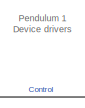
[diagram: root canvas - part 1/3, top center region]
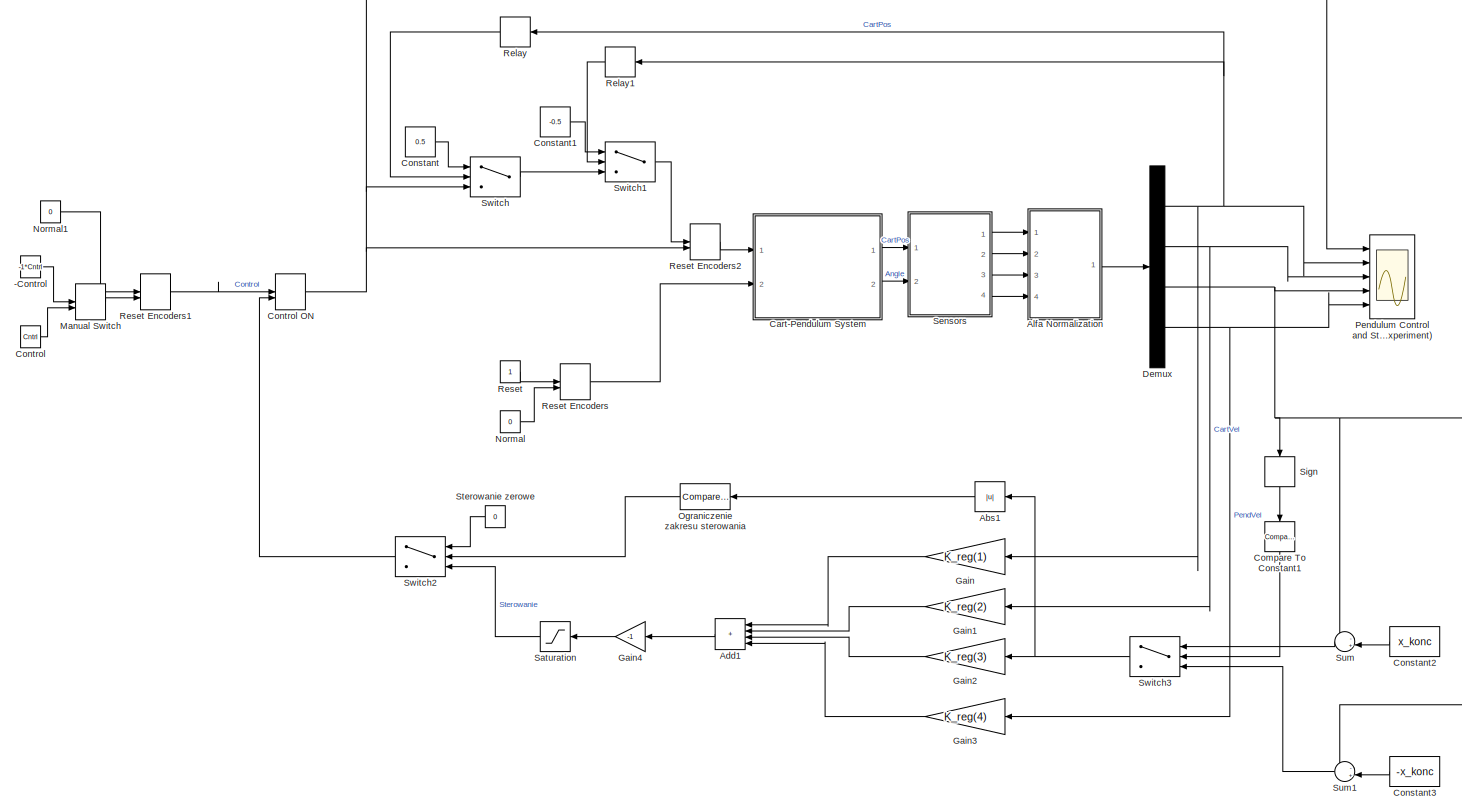
[diagram: root canvas - part 2/3, most of the canvas]
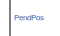
[diagram: root canvas - part 3/3, bottom right region]
MODEL slx_bb6b50c6ecb5
KIND model
CONFIG AbsTol = 1e-6
CONFIG EnableMultiTasking = off
CONFIG FixedStep = 0.01
CONFIG MaxStep = auto
CONFIG MinStep = auto
CONFIG RelTol = 1e-3
CONFIG SampleTimeConstraint = Unconstrained
CONFIG SolverName = ode5
CONFIG StartTime = 0.0
CONFIG StopTime = 999
BLOCK [Constant] -Control
  NameLocation = top
  Value = -1*Cntrl
BLOCK [Abs] Abs1
  NameLocation = top
  SaturateOnIntegerOverflow = off
BLOCK [Sum] Add1
  IconShape = rectangular
  Inputs = ++++
  NameLocation = top
  Ports = [4, 1]
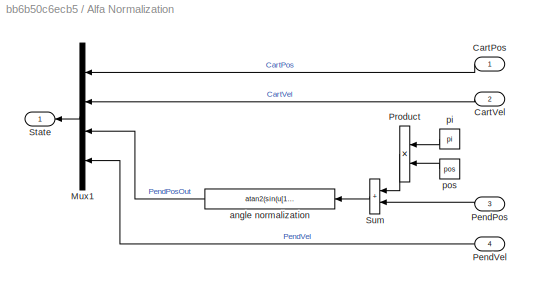
BLOCK [SubSystem] Alfa Normalization
  Ports = [4, 1]
  RequestExecContextInheritance = off
BLOCK [Inport] Alfa Normalization/CartPos
BLOCK [Inport] Alfa Normalization/CartVel
  Port = 2
BLOCK [Mux] Alfa Normalization/Mux1
  NameLocation = top
  Ports = [4, 1]
BLOCK [Inport] Alfa Normalization/PendPos
  Port = 3
BLOCK [Inport] Alfa Normalization/PendVel
  Port = 4
BLOCK [Product] Alfa Normalization/Product
  InputSameDT = on
  NameLocation = top
  OutDataTypeStr = Inherit: Same as first input
  Ports = [2, 1]
  SaturateOnIntegerOverflow = on
BLOCK [Outport] Alfa Normalization/State
  InitialOutput = 0
BLOCK [Sum] Alfa Normalization/Sum
  IconShape = rectangular
  InputSameDT = on
  NameLocation = top
  OutDataTypeStr = Inherit: Same as first input
  Ports = [2, 1]
  SaturateOnIntegerOverflow = on
BLOCK [Fcn] Alfa Normalization/angle normalization
  Expr = atan2(sin(u[1]),cos(u[1]))
  NameLocation = top
BLOCK [Constant] Alfa Normalization/pi
  NameLocation = top
  Value = pi
BLOCK [Constant] Alfa Normalization/pos
  Value = pos
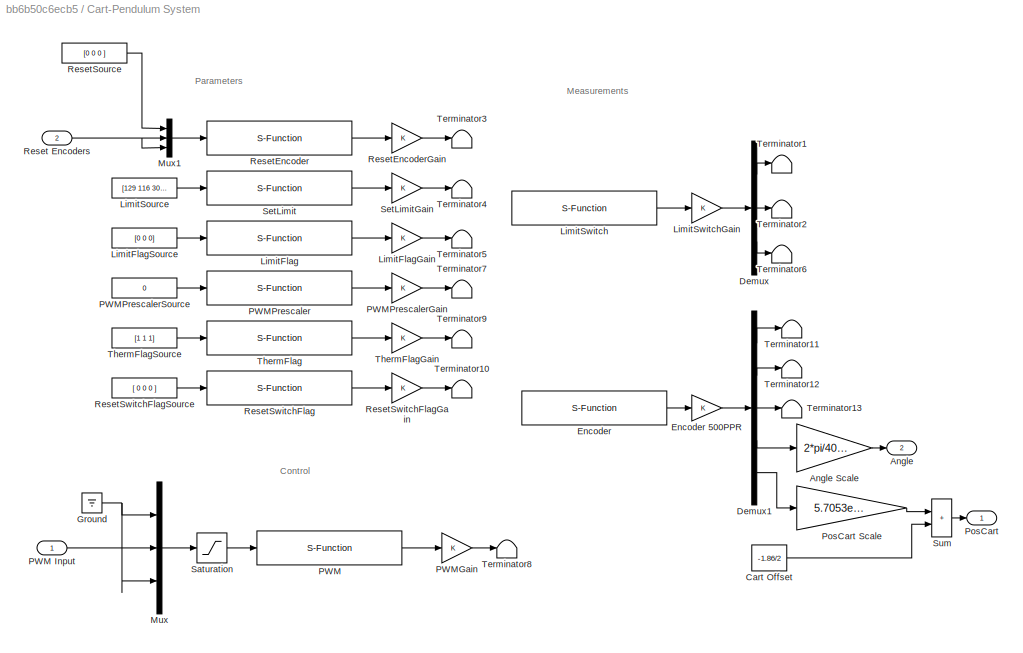
BLOCK [SubSystem] Cart-Pendulum System
  Ports = [2, 2]
  RequestExecContextInheritance = off
BLOCK [Outport] Cart-Pendulum System/Angle
  InitialOutput = 0
  Port = 2
BLOCK [Gain] Cart-Pendulum System/Angle Scale
  Gain = 2*pi/4096
  OutDataTypeStr = Inherit: Same as input
  ParamDataTypeStr = Inherit: Same as input
BLOCK [Constant] Cart-Pendulum System/Cart Offset
  Value = -1.86/2
BLOCK [Demux] Cart-Pendulum System/Demux
  DisplayOption = none
  Outputs = 3
  Ports = [1, 3]
BLOCK [Demux] Cart-Pendulum System/Demux1
  DisplayOption = none
  Outputs = 5
  Ports = [1, 5]
BLOCK [S-Function] Cart-Pendulum System/Encoder
  EnableBusSupport = off
  FunctionName = P1_Encoder
  Parameters = BaseAddress, T0
  Ports = [0, 1]
  SFcnIsStateOwnerBlock = off
  SFunctionDeploymentMode = off
BLOCK [Gain] Cart-Pendulum System/Encoder 500PPR
  OutDataTypeStr = Inherit: Same as input
  ParamDataTypeStr = Inherit: Same as input
  SaturateOnIntegerOverflow = on
BLOCK [Ground] Cart-Pendulum System/Ground
BLOCK [S-Function] Cart-Pendulum System/LimitFlag
  EnableBusSupport = off
  FunctionName = P1_LimitFlag
  Parameters = BaseAddress, T0
  Ports = [1, 1]
  SFcnIsStateOwnerBlock = off
  SFunctionDeploymentMode = off
BLOCK [Gain] Cart-Pendulum System/LimitFlagGain
  OutDataTypeStr = Inherit: Same as input
  ParamDataTypeStr = Inherit: Same as input
  SaturateOnIntegerOverflow = on
BLOCK [Constant] Cart-Pendulum System/LimitFlagSource
  Value = [0 0 0]
BLOCK [Constant] Cart-Pendulum System/LimitSource
  Value = [129 116 300]
BLOCK [S-Function] Cart-Pendulum System/LimitSwitch
  EnableBusSupport = off
  FunctionName = P1_Switch
  Parameters = BaseAddress, T0
  Ports = [0, 1]
  SFcnIsStateOwnerBlock = off
  SFunctionDeploymentMode = off
BLOCK [Gain] Cart-Pendulum System/LimitSwitchGain
  OutDataTypeStr = Inherit: Same as input
  ParamDataTypeStr = Inherit: Same as input
  SaturateOnIntegerOverflow = on
BLOCK [Mux] Cart-Pendulum System/Mux
  Inputs = 3
  Ports = [3, 1]
BLOCK [Mux] Cart-Pendulum System/Mux1
  DisplayOption = bar
  Inputs = [3 1 1]
  Ports = [3, 1]
BLOCK [S-Function] Cart-Pendulum System/PWM
  EnableBusSupport = off
  FunctionName = P1_PWM
  Parameters = BaseAddress, T0
  Ports = [1, 1]
  SFcnIsStateOwnerBlock = off
  SFunctionDeploymentMode = off
BLOCK [Inport] Cart-Pendulum System/PWM Input
BLOCK [Gain] Cart-Pendulum System/PWMGain
  OutDataTypeStr = Inherit: Same as input
  ParamDataTypeStr = Inherit: Same as input
  SaturateOnIntegerOverflow = on
BLOCK [S-Function] Cart-Pendulum System/PWMPrescaler
  EnableBusSupport = off
  FunctionName = P1_PWMPrescaler
  Parameters = BaseAddress, T0
  Ports = [1, 1]
  SFcnIsStateOwnerBlock = off
  SFunctionDeploymentMode = off
BLOCK [Gain] Cart-Pendulum System/PWMPrescalerGain
  OutDataTypeStr = Inherit: Same as input
  ParamDataTypeStr = Inherit: Same as input
  SaturateOnIntegerOverflow = on
BLOCK [Constant] Cart-Pendulum System/PWMPrescalerSource
  Value = 0
BLOCK [Outport] Cart-Pendulum System/PosCart
  InitialOutput = 0
BLOCK [Gain] Cart-Pendulum System/PosCart Scale
  Gain = 5.7053e-005
  OutDataTypeStr = Inherit: Same as input
  ParamDataTypeStr = Inherit: Same as input
BLOCK [Inport] Cart-Pendulum System/Reset Encoders
  Port = 2
BLOCK [S-Function] Cart-Pendulum System/ResetEncoder
  EnableBusSupport = off
  FunctionName = P1_ResetEncoder
  Parameters = BaseAddress, T0
  Ports = [1, 1]
  SFcnIsStateOwnerBlock = off
  SFunctionDeploymentMode = off
BLOCK [Gain] Cart-Pendulum System/ResetEncoderGain
  OutDataTypeStr = Inherit: Same as input
  ParamDataTypeStr = Inherit: Same as input
  SaturateOnIntegerOverflow = on
BLOCK [Constant] Cart-Pendulum System/ResetSource
  Value = [0 0 0 ]
BLOCK [S-Function] Cart-Pendulum System/ResetSwitchFlag 
  EnableBusSupport = off
  FunctionName = P1_ResetSwitchFlag
  Parameters = BaseAddress, T0
  Ports = [1, 1]
  SFcnIsStateOwnerBlock = off
  SFunctionDeploymentMode = off
BLOCK [Gain] Cart-Pendulum System/ResetSwitchFlagGain
  OutDataTypeStr = Inherit: Same as input
  ParamDataTypeStr = Inherit: Same as input
  SaturateOnIntegerOverflow = on
BLOCK [Constant] Cart-Pendulum System/ResetSwitchFlagSource
  Value = [ 0 0 0 ]
BLOCK [Saturate] Cart-Pendulum System/Saturation
BLOCK [S-Function] Cart-Pendulum System/SetLimit
  EnableBusSupport = off
  FunctionName = P1_SetLimit
  Parameters = BaseAddress, T0
  Ports = [1, 1]
  SFcnIsStateOwnerBlock = off
  SFunctionDeploymentMode = off
BLOCK [Gain] Cart-Pendulum System/SetLimitGain
  OutDataTypeStr = Inherit: Same as input
  ParamDataTypeStr = Inherit: Same as input
  SaturateOnIntegerOverflow = on
BLOCK [Sum] Cart-Pendulum System/Sum
  IconShape = rectangular
  InputSameDT = on
  OutDataTypeStr = Inherit: Same as first input
  Ports = [2, 1]
  SaturateOnIntegerOverflow = on
BLOCK [Terminator] Cart-Pendulum System/Terminator1
BLOCK [Terminator] Cart-Pendulum System/Terminator10
BLOCK [Terminator] Cart-Pendulum System/Terminator11
BLOCK [Terminator] Cart-Pendulum System/Terminator12
BLOCK [Terminator] Cart-Pendulum System/Terminator13
BLOCK [Terminator] Cart-Pendulum System/Terminator2
BLOCK [Terminator] Cart-Pendulum System/Terminator3
BLOCK [Terminator] Cart-Pendulum System/Terminator4
BLOCK [Terminator] Cart-Pendulum System/Terminator5
BLOCK [Terminator] Cart-Pendulum System/Terminator6
BLOCK [Terminator] Cart-Pendulum System/Terminator7
BLOCK [Terminator] Cart-Pendulum System/Terminator8
BLOCK [Terminator] Cart-Pendulum System/Terminator9
BLOCK [S-Function] Cart-Pendulum System/ThermFlag 
  EnableBusSupport = off
  FunctionName = P1_ThermFlag
  Parameters = BaseAddress, T0
  Ports = [1, 1]
  SFcnIsStateOwnerBlock = off
  SFunctionDeploymentMode = off
BLOCK [Gain] Cart-Pendulum System/ThermFlagGain
  OutDataTypeStr = Inherit: Same as input
  ParamDataTypeStr = Inherit: Same as input
  SaturateOnIntegerOverflow = on
BLOCK [Constant] Cart-Pendulum System/ThermFlagSource
  Value = [1 1 1]
BLOCK [Reference] Compare To Constant1  REF=simulink/Logic and Bit
Operations/Compare
To Constant
  NameLocation = left
  Ports = [1, 1]
  SourceBlock = simulink/Logic and Bit\nOperations/Compare\nTo Constant
  SourceProductBaseCode = SL
  SourceType = Compare To Constant
BLOCK [Constant] Constant
  Value = 0.5
BLOCK [Constant] Constant1
  Value = -0.5
BLOCK [Constant] Constant2
  NameLocation = top
  Value = x_konc
BLOCK [Constant] Constant3
  NameLocation = top
  Value = -x_konc
BLOCK [Constant] Control
  NameLocation = top
  Value = Cntrl
BLOCK [ManualSwitch] Control ON
BLOCK [Demux] Demux
  DisplayOption = none
  Ports = [1, 4]
BLOCK [Gain] Gain
  Gain = K_reg(1)
  NameLocation = top
BLOCK [Gain] Gain1
  Gain = K_reg(2)
  NameLocation = top
BLOCK [Gain] Gain2
  Gain = K_reg(3)
  NameLocation = top
BLOCK [Gain] Gain3
  Gain = K_reg(4)
  NameLocation = top
BLOCK [Gain] Gain4
  Gain = -1
BLOCK [ManualSwitch] Manual Switch
BLOCK [Constant] Normal
  Value = 0
BLOCK [Constant] Normal1
  Value = 0
BLOCK [Reference] Ograniczenie zakresu sterowania  REF=simulink/Logic and Bit
Operations/Compare
To Constant
  NameLocation = top
  Ports = [1, 1]
  SourceBlock = simulink/Logic and Bit\nOperations/Compare\nTo Constant
  SourceProductBaseCode = SL
  SourceType = Compare To Constant
BLOCK [Scope] Pendulum Control and States (Experiment)
  ExtModeLoggingTrig = on
  ExtModeUploadOption = log
  Floating = off
  NumInputPorts = 5
  Ports = [5]
  ScopeSpecificationString = Simulink.scopes.TimeScopeBlockCfg('CurrentConfiguration', extmgr.ConfigurationSet(extmgr.Configuration('Core','General UI',true),extmgr.Configuration('Core','Source UI',true),extmgr.Configuration('Sources','WiredSimulink',true,'DataLogging',true,'DataLoggingVariableName','P1_ExpData','DataLoggingSaveFormat','StructureWithTime','DataLoggingMaxPoints','50000','DataLoggingDecimation','1','DataLogging...<+4473ch>
BLOCK [Relay] Relay
  NameLocation = top
  OffSwitchValue = 0.6
  OnSwitchValue = 0.7
BLOCK [Relay] Relay1
  NameLocation = top
  OffOutputValue = 1
  OffSwitchValue = -0.7
  OnOutputValue = 0
  OnSwitchValue = -0.6
BLOCK [Constant] Reset
  NameLocation = top
BLOCK [ManualSwitch] Reset Encoders
  CurrentSetting = 0
BLOCK [ManualSwitch] Reset Encoders1
BLOCK [ManualSwitch] Reset Encoders2
  CurrentSetting = 0
BLOCK [Saturate] Saturation
  LowerLimit = -1
  NameLocation = top
  UpperLimit = 1
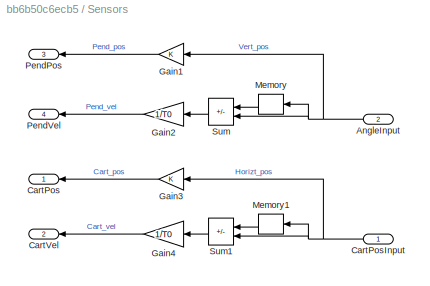
BLOCK [SubSystem] Sensors
  Ports = [2, 4]
  RequestExecContextInheritance = off
BLOCK [Inport] Sensors/AngleInput
  NameLocation = top
  Port = 2
BLOCK [Outport] Sensors/CartPos
  InitialOutput = 0
BLOCK [Inport] Sensors/CartPosInput
  NameLocation = top
BLOCK [Outport] Sensors/CartVel
  InitialOutput = 0
  Port = 2
BLOCK [Gain] Sensors/Gain1
  OutDataTypeStr = Inherit: Same as input
  ParamDataTypeStr = Inherit: Same as input
  SaturateOnIntegerOverflow = on
BLOCK [Gain] Sensors/Gain2
  Gain = 1/T0
  OutDataTypeStr = Inherit: Same as input
  ParamDataTypeStr = Inherit: Same as input
  SaturateOnIntegerOverflow = on
BLOCK [Gain] Sensors/Gain3
  OutDataTypeStr = Inherit: Same as input
  ParamDataTypeStr = Inherit: Same as input
  SaturateOnIntegerOverflow = on
BLOCK [Gain] Sensors/Gain4
  Gain = 1/T0
  OutDataTypeStr = Inherit: Same as input
  ParamDataTypeStr = Inherit: Same as input
  SaturateOnIntegerOverflow = on
BLOCK [Memory] Sensors/Memory
  NameLocation = top
BLOCK [Memory] Sensors/Memory1
  NameLocation = top
BLOCK [Outport] Sensors/PendPos
  InitialOutput = 0
  Port = 3
BLOCK [Outport] Sensors/PendVel
  InitialOutput = 0
  Port = 4
BLOCK [Sum] Sensors/Sum
  IconShape = rectangular
  InputSameDT = on
  Inputs = -+
  NameLocation = top
  OutDataTypeStr = Inherit: Same as first input
  Ports = [2, 1]
  SaturateOnIntegerOverflow = on
BLOCK [Sum] Sensors/Sum1
  IconShape = rectangular
  InputSameDT = on
  Inputs = -+
  NameLocation = top
  OutDataTypeStr = Inherit: Same as first input
  Ports = [2, 1]
  SaturateOnIntegerOverflow = on
BLOCK [Signum] Sign
  NameLocation = left
BLOCK [Constant] Sterowanie zerowe
  NameLocation = top
  Value = 0
BLOCK [Sum] Sum
  Inputs = -+|
  Ports = [2, 1]
BLOCK [Sum] Sum1
  Inputs = -+|
  Ports = [2, 1]
BLOCK [Switch] Switch
  InputSameDT = off
  SaturateOnIntegerOverflow = off
  Threshold = 1
BLOCK [Switch] Switch1
  InputSameDT = off
  SaturateOnIntegerOverflow = off
  Threshold = 1
BLOCK [Switch] Switch2
  InputSameDT = off
  NameLocation = top
  SaturateOnIntegerOverflow = off
  Threshold = 1
BLOCK [Switch] Switch3
  InputSameDT = off
  NameLocation = top
  SaturateOnIntegerOverflow = off
  Threshold = 1
ANNOTATION (root): Pendulum 1 Device drivers
ANNOTATION Cart-Pendulum System: Control
ANNOTATION Cart-Pendulum System: Measurements
ANNOTATION Cart-Pendulum System: Parameters
LINE -Control:1 -> Manual Switch:1
LINE Abs1:1 -> Ograniczenie zakresu sterowania:1
LINE Add1:1 -> Gain4:1
LINE Alfa Normalization/CartPos:1 -> Alfa Normalization/Mux1:1
LINE Alfa Normalization/CartVel:1 -> Alfa Normalization/Mux1:2
LINE Alfa Normalization/Mux1:1 -> Alfa Normalization/State:1
LINE Alfa Normalization/PendPos:1 -> Alfa Normalization/Sum:2
LINE Alfa Normalization/PendVel:1 -> Alfa Normalization/Mux1:4
LINE Alfa Normalization/Product:1 -> Alfa Normalization/Sum:1
LINE Alfa Normalization/Sum:1 -> Alfa Normalization/angle normalization:1
LINE Alfa Normalization/angle normalization:1 -> Alfa Normalization/Mux1:3
LINE Alfa Normalization/pi:1 -> Alfa Normalization/Product:1
LINE Alfa Normalization/pos:1 -> Alfa Normalization/Product:2
LINE Alfa Normalization:1 -> Demux:1
LINE Cart-Pendulum System/Angle Scale:1 -> Cart-Pendulum System/Angle:1
LINE Cart-Pendulum System/Cart Offset:1 -> Cart-Pendulum System/Sum:2
LINE Cart-Pendulum System/Demux1:1 -> Cart-Pendulum System/Terminator11:1
LINE Cart-Pendulum System/Demux1:2 -> Cart-Pendulum System/Terminator12:1
LINE Cart-Pendulum System/Demux1:3 -> Cart-Pendulum System/Terminator13:1
LINE Cart-Pendulum System/Demux1:4 -> Cart-Pendulum System/Angle Scale:1
LINE Cart-Pendulum System/Demux1:5 -> Cart-Pendulum System/PosCart Scale:1
LINE Cart-Pendulum System/Demux:1 -> Cart-Pendulum System/Terminator1:1
LINE Cart-Pendulum System/Demux:2 -> Cart-Pendulum System/Terminator2:1
LINE Cart-Pendulum System/Demux:3 -> Cart-Pendulum System/Terminator6:1
LINE Cart-Pendulum System/Encoder 500PPR:1 -> Cart-Pendulum System/Demux1:1
LINE Cart-Pendulum System/Encoder:1 -> Cart-Pendulum System/Encoder 500PPR:1
NET Cart-Pendulum System/Ground:1 -> Cart-Pendulum System/Mux:1, Cart-Pendulum System/Mux:3
LINE Cart-Pendulum System/LimitFlag:1 -> Cart-Pendulum System/LimitFlagGain:1
LINE Cart-Pendulum System/LimitFlagGain:1 -> Cart-Pendulum System/Terminator5:1
LINE Cart-Pendulum System/LimitFlagSource:1 -> Cart-Pendulum System/LimitFlag:1
LINE Cart-Pendulum System/LimitSource:1 -> Cart-Pendulum System/SetLimit:1
LINE Cart-Pendulum System/LimitSwitch:1 -> Cart-Pendulum System/LimitSwitchGain:1
LINE Cart-Pendulum System/LimitSwitchGain:1 -> Cart-Pendulum System/Demux:1
LINE Cart-Pendulum System/Mux1:1 -> Cart-Pendulum System/ResetEncoder:1
LINE Cart-Pendulum System/Mux:1 -> Cart-Pendulum System/Saturation:1
LINE Cart-Pendulum System/PWM Input:1 -> Cart-Pendulum System/Mux:2
LINE Cart-Pendulum System/PWM:1 -> Cart-Pendulum System/PWMGain:1
LINE Cart-Pendulum System/PWMGain:1 -> Cart-Pendulum System/Terminator8:1
LINE Cart-Pendulum System/PWMPrescaler:1 -> Cart-Pendulum System/PWMPrescalerGain:1
LINE Cart-Pendulum System/PWMPrescalerGain:1 -> Cart-Pendulum System/Terminator7:1
LINE Cart-Pendulum System/PWMPrescalerSource:1 -> Cart-Pendulum System/PWMPrescaler:1
LINE Cart-Pendulum System/PosCart Scale:1 -> Cart-Pendulum System/Sum:1
NET Cart-Pendulum System/Reset Encoders:1 -> Cart-Pendulum System/Mux1:2, Cart-Pendulum System/Mux1:3
LINE Cart-Pendulum System/ResetEncoder:1 -> Cart-Pendulum System/ResetEncoderGain:1
LINE Cart-Pendulum System/ResetEncoderGain:1 -> Cart-Pendulum System/Terminator3:1
LINE Cart-Pendulum System/ResetSource:1 -> Cart-Pendulum System/Mux1:1
LINE Cart-Pendulum System/ResetSwitchFlag :1 -> Cart-Pendulum System/ResetSwitchFlagGain:1
LINE Cart-Pendulum System/ResetSwitchFlagGain:1 -> Cart-Pendulum System/Terminator10:1
LINE Cart-Pendulum System/ResetSwitchFlagSource:1 -> Cart-Pendulum System/ResetSwitchFlag :1
LINE Cart-Pendulum System/Saturation:1 -> Cart-Pendulum System/PWM:1
LINE Cart-Pendulum System/SetLimit:1 -> Cart-Pendulum System/SetLimitGain:1
LINE Cart-Pendulum System/SetLimitGain:1 -> Cart-Pendulum System/Terminator4:1
LINE Cart-Pendulum System/Sum:1 -> Cart-Pendulum System/PosCart:1
LINE Cart-Pendulum System/ThermFlag :1 -> Cart-Pendulum System/ThermFlagGain:1
LINE Cart-Pendulum System/ThermFlagGain:1 -> Cart-Pendulum System/Terminator9:1
LINE Cart-Pendulum System/ThermFlagSource:1 -> Cart-Pendulum System/ThermFlag :1
LINE Cart-Pendulum System:1 -> Sensors:1
LINE Cart-Pendulum System:2 -> Sensors:2
LINE Compare To Constant1:1 -> Switch3:2
LINE Constant1:1 -> Switch1:1
LINE Constant2:1 -> Sum:2
LINE Constant3:1 -> Sum1:2
LINE Constant:1 -> Switch:1
NET Control ON:1 -> Pendulum Control and States (Experiment):1, Reset Encoders2:2, Switch:3
LINE Control:1 -> Manual Switch:2
NET Demux:1 -> Gain:1, Pendulum Control and States (Experiment):2, Relay1:1, Relay:1
NET Demux:2 -> Gain1:1, Pendulum Control and States (Experiment):3
NET Demux:3 -> Pendulum Control and States (Experiment):4, Sign:1, Sum1:1, Sum:1
NET Demux:4 -> Gain3:1, Pendulum Control and States (Experiment):5
LINE Gain1:1 -> Add1:2
LINE Gain2:1 -> Add1:3
LINE Gain3:1 -> Add1:4
LINE Gain4:1 -> Saturation:1
LINE Gain:1 -> Add1:1
LINE Manual Switch:1 -> Reset Encoders1:2
LINE Normal1:1 -> Reset Encoders1:1
LINE Normal:1 -> Reset Encoders:2
LINE Ograniczenie zakresu sterowania:1 -> Switch2:2
LINE Relay1:1 -> Switch1:2
LINE Relay:1 -> Switch:2
LINE Reset Encoders1:1 -> Control ON:1
LINE Reset Encoders2:1 -> Cart-Pendulum System:1
LINE Reset Encoders:1 -> Cart-Pendulum System:2
LINE Reset:1 -> Reset Encoders:1
LINE Saturation:1 -> Switch2:3
NET Sensors/AngleInput:1 -> Sensors/Gain1:1, Sensors/Memory:1, Sensors/Sum:2
NET Sensors/CartPosInput:1 -> Sensors/Gain3:1, Sensors/Memory1:1, Sensors/Sum1:2
LINE Sensors/Gain1:1 -> Sensors/PendPos:1
LINE Sensors/Gain2:1 -> Sensors/PendVel:1
LINE Sensors/Gain3:1 -> Sensors/CartPos:1
LINE Sensors/Gain4:1 -> Sensors/CartVel:1
LINE Sensors/Memory1:1 -> Sensors/Sum1:1
LINE Sensors/Memory:1 -> Sensors/Sum:1
LINE Sensors/Sum1:1 -> Sensors/Gain4:1
LINE Sensors/Sum:1 -> Sensors/Gain2:1
LINE Sensors:1 -> Alfa Normalization:1
LINE Sensors:2 -> Alfa Normalization:2
LINE Sensors:3 -> Alfa Normalization:3
LINE Sensors:4 -> Alfa Normalization:4
LINE Sign:1 -> Compare To Constant1:1
LINE Sterowanie zerowe:1 -> Switch2:1
LINE Sum1:1 -> Switch3:3
LINE Sum:1 -> Switch3:1
LINE Switch1:1 -> Reset Encoders2:1
LINE Switch2:1 -> Control ON:2
NET Switch3:1 -> Abs1:1, Gain2:1
LINE Switch:1 -> Switch1:3
note: NET lines group one-source signal fan-out (src -> all destinations, sorted); 1:1 wires keep LINE
